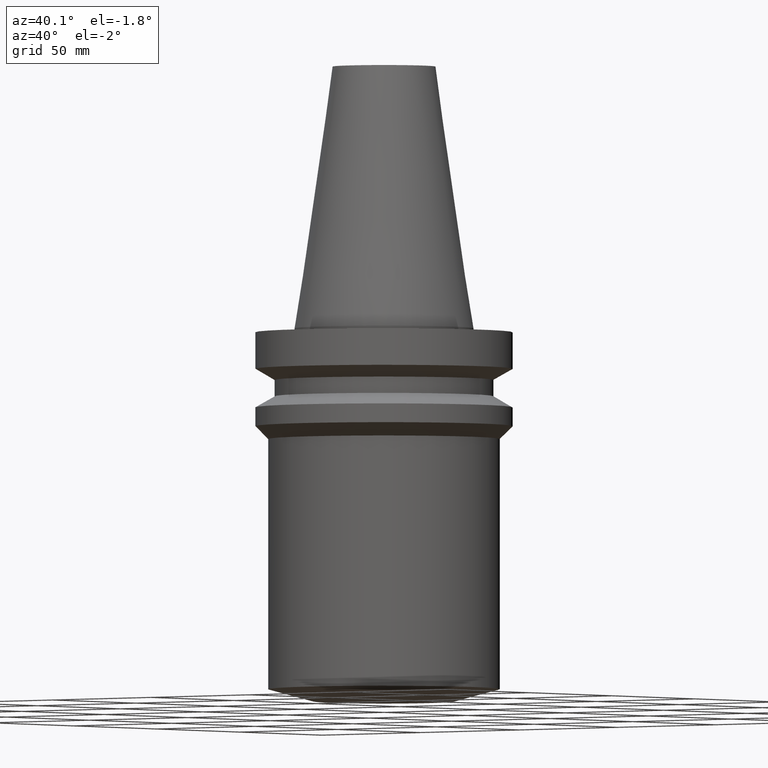
[diagram: clean part render]
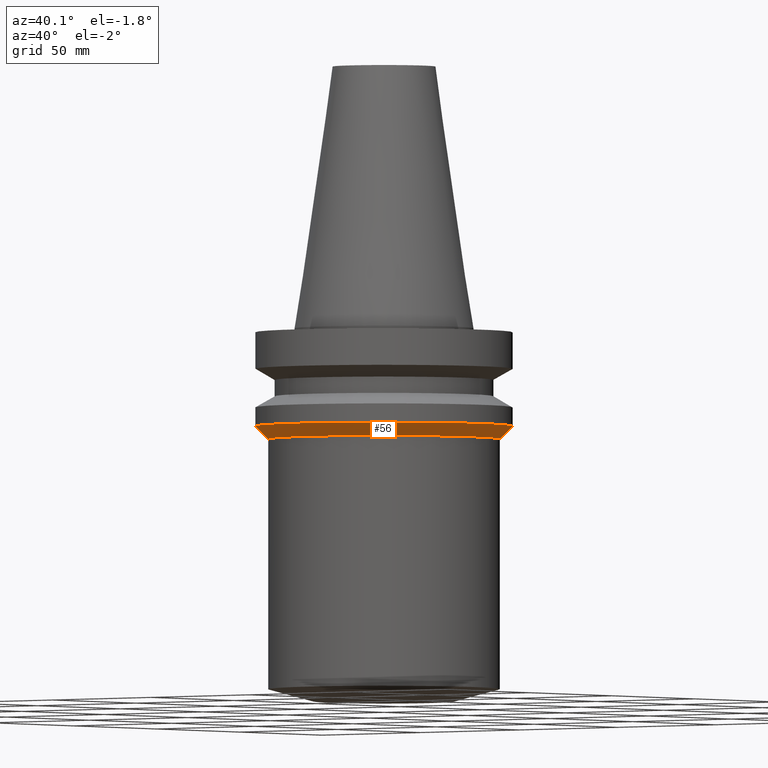
[diagram: same view with one face highlighted and labeled with its STEP entity id]
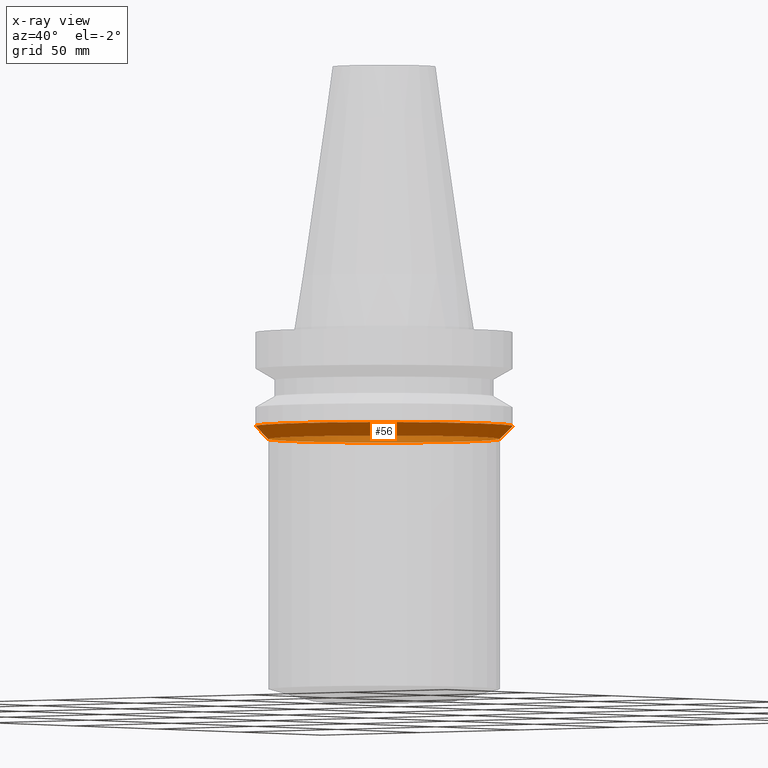
[diagram: x-ray of the same camera — body ghosted, the highlighted face saturated]
A machine part, auxiliary view. The second image highlights one B-rep face of the part: STEP entity #56.
The next image is the same camera in x-ray: the body ghosted, the highlighted face saturated — about 28% of this face is hidden behind the body in this view.
In plain terms, the highlighted conical surface has half-angle 45 deg.
Its self-contained STEP definition (entity closure, byte-faithful):
#56=ADVANCED_FACE('Unnamed[1]',(#141,#142),#143,.T.);
#78=EDGE_CURVE('Unnamed[1]',#174,#174,#175,.T.);
#80=EDGE_CURVE('Unnamed[1]',#177,#177,#178,.T.);
#141=FACE_BOUND('',#252,.T.);
#142=FACE_BOUND('',#253,.T.);
#143=CONICAL_SURFACE('',#254,47.5,0.785398163397448);
#174=VERTEX_POINT('',#293);
#175=CIRCLE('',#294,50.0);
#177=VERTEX_POINT('',#297);
#178=CIRCLE('',#298,45.0);
#252=EDGE_LOOP('',(#377));
#253=EDGE_LOOP('',(#378));
#254=AXIS2_PLACEMENT_3D('',#379,#380,#381);
#293=CARTESIAN_POINT('',(2.32682891837997E-015,50.0,-38.0));
#294=AXIS2_PLACEMENT_3D('',#412,#413,#414);
#297=CARTESIAN_POINT('',(2.63299061816681E-015,45.0,-43.0));
#298=AXIS2_PLACEMENT_3D('',#415,#416,#417);
#377=ORIENTED_EDGE('',*,*,#80,.F.);
#378=ORIENTED_EDGE('',*,*,#78,.T.);
#379=CARTESIAN_POINT('',(2.47990976827339E-015,4.95981953654678E-015,-40.5));
#380=DIRECTION('',(-6.12323399573676E-017,-1.22464679914735E-016,1.0));
#381=DIRECTION('',(-1.23259516440783E-032,1.0,1.22464679914735E-016));
#412=CARTESIAN_POINT('',(2.32682891837997E-015,4.65365783675994E-015,-38.0));
#413=DIRECTION('',(6.12323399573677E-017,1.22464679914735E-016,-1.0));
#414=DIRECTION('',(-1.23259516440783E-032,1.0,1.22464679914735E-016));
#415=CARTESIAN_POINT('',(2.63299061816681E-015,5.26598123633362E-015,-43.0));
#416=DIRECTION('',(6.12323399573677E-017,1.22464679914735E-016,-1.0));
#417=DIRECTION('',(-1.23259516440783E-032,1.0,1.22464679914735E-016));